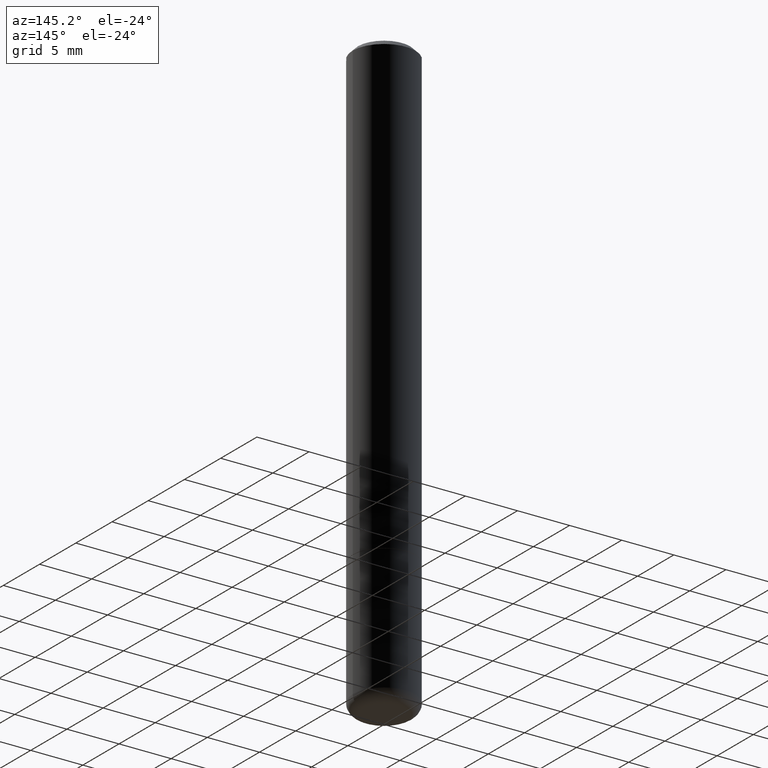
[diagram: clean part render]
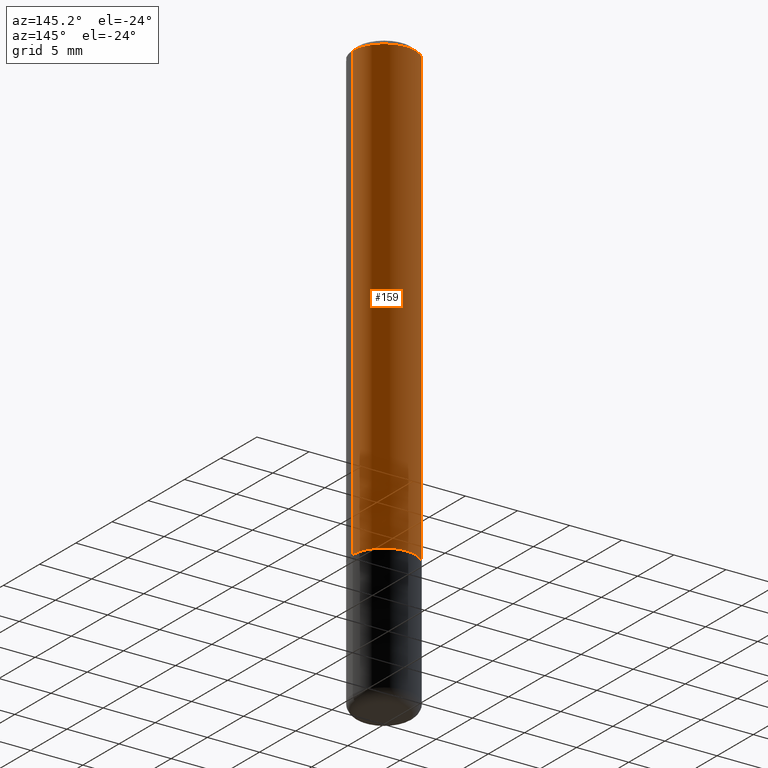
[diagram: same view with one face highlighted and labeled with its STEP entity id]
A machine part, auxiliary view. The second image highlights one B-rep face of the part: STEP entity #159.
In plain terms, the highlighted cylindrical surface (partial cylindrical patch) has radius 2.9997 mm, axis along (-0, 0, 1).
Its self-contained STEP definition (entity closure, byte-faithful):
#6 = DIRECTION ( 'NONE',  ( 1.000000000000000000, -6.982962677686266711E-15, 0.000000000000000000 ) ) ;
#8 = DIRECTION ( 'NONE',  ( -2.445468806185136877E-29, 3.491481338843145188E-15, 1.000000000000000000 ) ) ;
#16 = ORIENTED_EDGE ( 'NONE', *, *, #275, .F. ) ;
#18 = VERTEX_POINT ( 'NONE', #346 ) ;
#19 = VECTOR ( 'NONE', #8, 39.37007874015748143 ) ;
#35 = AXIS2_PLACEMENT_3D ( 'NONE', #127, #230, #250 ) ;
#73 = AXIS2_PLACEMENT_3D ( 'NONE', #196, #267, #6 ) ;
#98 = CARTESIAN_POINT ( 'NONE',  ( -0.1181000000000001215, 8.391509709326791832E-16, -5.809262341591049389E-30 ) ) ;
#122 = CIRCLE ( 'NONE', #348, 0.1181000000000002048 ) ;
#127 = CARTESIAN_POINT ( 'NONE',  ( 0.000000000000000000, 0.000000000000000000, 0.000000000000000000 ) ) ;
#137 = LINE ( 'NONE', #391, #19 ) ;
#154 = EDGE_CURVE ( 'NONE', #18, #183, #122, .T. ) ;
#157 = DIRECTION ( 'NONE',  ( -2.445468806185136597E-29, 3.491481338843145583E-15, 1.000000000000000000 ) ) ;
#159 = ADVANCED_FACE ( 'NONE', ( #412 ), #221, .T. ) ;
#177 = EDGE_CURVE ( 'NONE', #183, #299, #321, .T. ) ;
#183 = VERTEX_POINT ( 'NONE', #351 ) ;
#196 = CARTESIAN_POINT ( 'NONE',  ( 4.890937612370288923E-31, -6.982962677686312563E-17, -0.02000000000000006287 ) ) ;
#221 = CYLINDRICAL_SURFACE ( 'NONE', #35, 0.1181000000000001215 ) ;
#224 = DIRECTION ( 'NONE',  ( -2.445468806185136877E-29, 3.491481338843145188E-15, 1.000000000000000000 ) ) ;
#230 = DIRECTION ( 'NONE',  ( -2.445468806185136597E-29, 3.491481338843145583E-15, 1.000000000000000000 ) ) ;
#250 = DIRECTION ( 'NONE',  ( 1.000000000000000000, -6.982962677686266711E-15, 4.876176775795935793E-29 ) ) ;
#262 = CIRCLE ( 'NONE', #73, 0.1181000000000000383 ) ;
#267 = DIRECTION ( 'NONE',  ( -2.445468806185136597E-29, 3.491481338843145583E-15, 1.000000000000000000 ) ) ;
#275 = EDGE_CURVE ( 'NONE', #18, #368, #137, .T. ) ;
#288 = EDGE_CURVE ( 'NONE', #368, #299, #262, .T. ) ;
#299 = VERTEX_POINT ( 'NONE', #364 ) ;
#308 = ORIENTED_EDGE ( 'NONE', *, *, #154, .T. ) ;
#310 = EDGE_LOOP ( 'NONE', ( #308, #392, #374, #16 ) ) ;
#314 = CARTESIAN_POINT ( 'NONE',  ( 4.233840144148326789E-29, -6.044801641939137282E-15, -1.731299999999999839 ) ) ;
#321 = LINE ( 'NONE', #98, #369 ) ;
#322 = CARTESIAN_POINT ( 'NONE',  ( 0.1181000000000000383, -8.800544403136812319E-16, -0.02000000000000006287 ) ) ;
#346 = CARTESIAN_POINT ( 'NONE',  ( 0.1181000000000002048, -6.869489534173887122E-15, -1.731299999999999839 ) ) ;
#348 = AXIS2_PLACEMENT_3D ( 'NONE', #314, #157, #383 ) ;
#351 = CARTESIAN_POINT ( 'NONE',  ( -0.1181000000000002048, -2.218164663425318543E-15, -1.731299999999999839 ) ) ;
#364 = CARTESIAN_POINT ( 'NONE',  ( -0.1181000000000000383, 7.548582654578852602E-16, -0.02000000000000006287 ) ) ;
#368 = VERTEX_POINT ( 'NONE', #322 ) ;
#369 = VECTOR ( 'NONE', #224, 39.37007874015748143 ) ;
#374 = ORIENTED_EDGE ( 'NONE', *, *, #288, .F. ) ;
#383 = DIRECTION ( 'NONE',  ( 1.000000000000000000, -6.982962677686268288E-15, 0.000000000000000000 ) ) ;
#391 = CARTESIAN_POINT ( 'NONE',  ( 0.1181000000000001215, -8.246878922347489529E-16, 5.758764772215006046E-30 ) ) ;
#392 = ORIENTED_EDGE ( 'NONE', *, *, #177, .T. ) ;
#412 = FACE_OUTER_BOUND ( 'NONE', #310, .T. ) ;